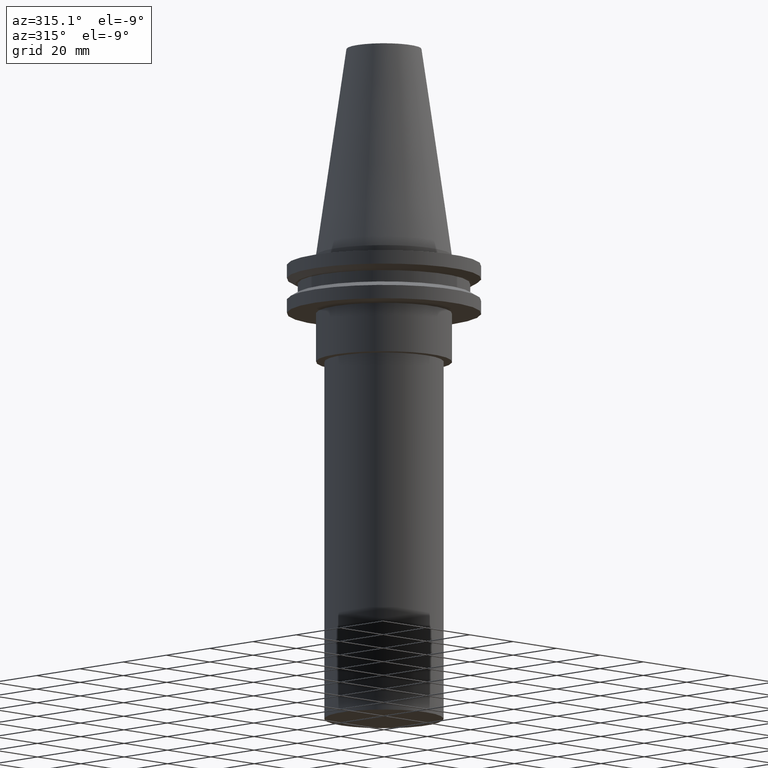
[diagram: clean part render]
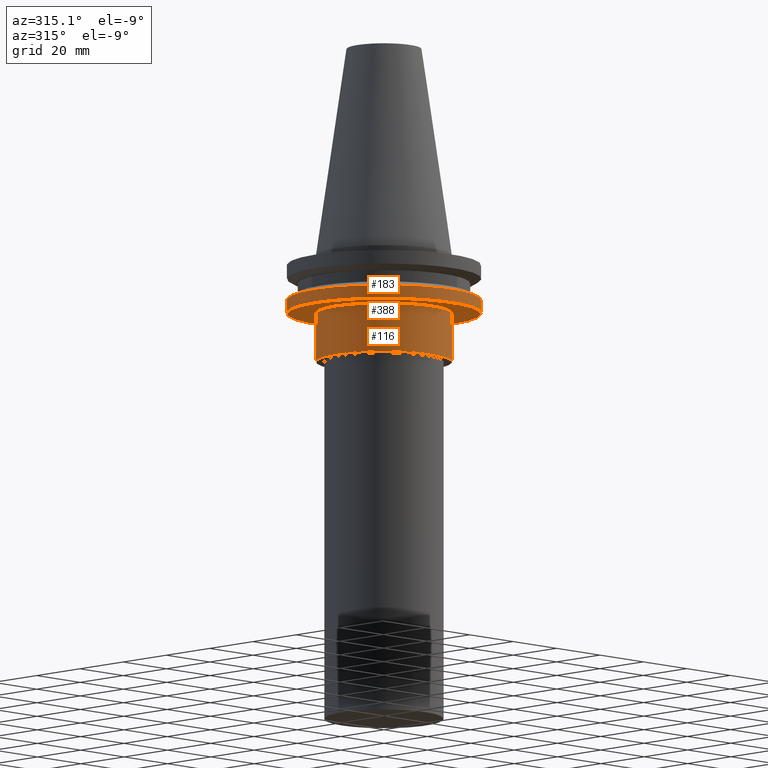
[diagram: same view with one multi-face feature highlighted, each face labeled with its STEP entity id]
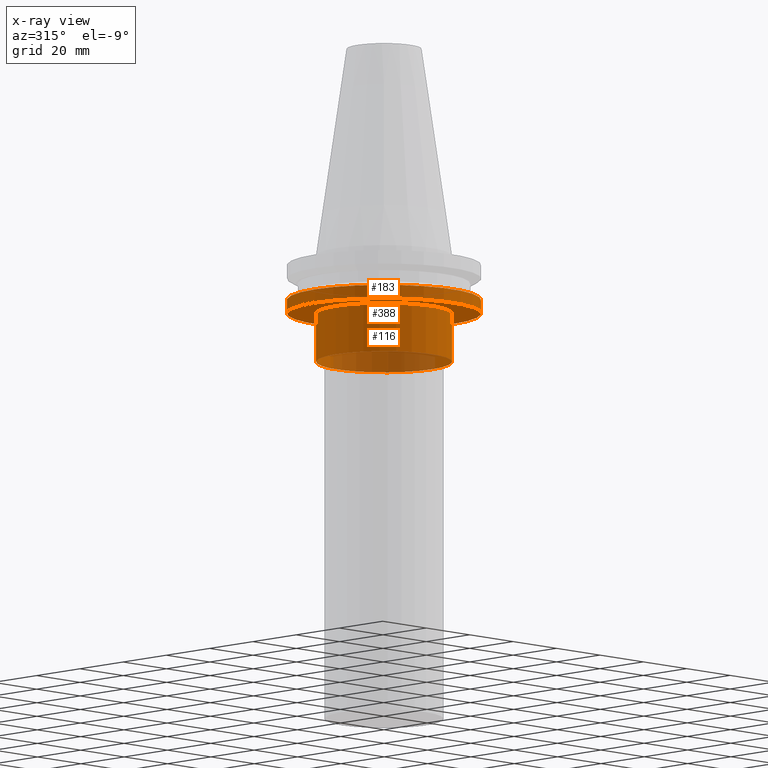
[diagram: x-ray of the same camera — body ghosted, the whole feature saturated]
A machine part, auxiliary view. The highlighted faces form ONE feature: a stepped (counterbored) hole: 2 coaxial cylindrical walls of radii 22.225 -> 31.75 mm joined by 1 annular planar shoulder face(s). The faces share edges in the B-rep.
The next image is the same camera in x-ray: the body ghosted and the whole hole feature saturated, so the bore chain is visible through the body.
Their STEP definitions:
[1] entity #183 (Cylinder):
#48 = EDGE_CURVE ( 'NONE', #255, #255, #92, .T. ) ;
#60 = DIRECTION ( 'NONE',  ( 1.000000000000000000, 0.000000000000000000, 0.000000000000000000 ) ) ;
#80 = DIRECTION ( 'NONE',  ( -0.000000000000000000, -0.000000000000000000, 1.000000000000000000 ) ) ;
#89 = FACE_OUTER_BOUND ( 'NONE', #369, .T. ) ;
#92 = CIRCLE ( 'NONE', #131, 31.74999999999999289 ) ;
#105 = CARTESIAN_POINT ( 'NONE',  ( 31.74999999999999289, 0.000000000000000000, -19.04999999999999716 ) ) ;
#124 = CIRCLE ( 'NONE', #173, 31.75000000000000000 ) ;
#131 = AXIS2_PLACEMENT_3D ( 'NONE', #292, #80, #320 ) ;
#154 = ORIENTED_EDGE ( 'NONE', *, *, #353, .F. ) ;
#156 = DIRECTION ( 'NONE',  ( 1.000000000000000000, 0.000000000000000000, 0.000000000000000000 ) ) ;
#173 = AXIS2_PLACEMENT_3D ( 'NONE', #381, #190, #156 ) ;
#175 = FACE_OUTER_BOUND ( 'NONE', #185, .T. ) ;
#183 = ADVANCED_FACE ( 'NONE', ( #175, #89 ), #210, .T. ) ;
#185 = EDGE_LOOP ( 'NONE', ( #154 ) ) ;
#190 = DIRECTION ( 'NONE',  ( -0.000000000000000000, -0.000000000000000000, 1.000000000000000000 ) ) ;
#210 = CYLINDRICAL_SURFACE ( 'NONE', #356, 31.75000000000000000 ) ;
#254 = ORIENTED_EDGE ( 'NONE', *, *, #48, .T. ) ;
#255 = VERTEX_POINT ( 'NONE', #105 ) ;
#292 = CARTESIAN_POINT ( 'NONE',  ( 0.000000000000000000, 0.000000000000000000, -19.04999999999999716 ) ) ;
#301 = CARTESIAN_POINT ( 'NONE',  ( 0.000000000000000000, 0.000000000000000000, 68.25000000000000000 ) ) ;
#310 = VERTEX_POINT ( 'NONE', #376 ) ;
#320 = DIRECTION ( 'NONE',  ( 1.000000000000000000, 0.000000000000000000, 0.000000000000000000 ) ) ;
#331 = DIRECTION ( 'NONE',  ( -0.000000000000000000, -0.000000000000000000, 1.000000000000000000 ) ) ;
#353 = EDGE_CURVE ( 'NONE', #310, #310, #124, .T. ) ;
#356 = AXIS2_PLACEMENT_3D ( 'NONE', #301, #331, #60 ) ;
#369 = EDGE_LOOP ( 'NONE', ( #254 ) ) ;
#376 = CARTESIAN_POINT ( 'NONE',  ( 31.75000000000000000, 0.000000000000000000, -14.65472339340266572 ) ) ;
#381 = CARTESIAN_POINT ( 'NONE',  ( 0.000000000000000000, 0.000000000000000000, -14.65472339340266572 ) ) ;
[2] entity #116 (Cylinder):
#14 = CARTESIAN_POINT ( 'NONE',  ( 0.000000000000000000, 0.000000000000000000, 68.25000000000000000 ) ) ;
#27 = DIRECTION ( 'NONE',  ( -0.000000000000000000, -0.000000000000000000, 1.000000000000000000 ) ) ;
#62 = DIRECTION ( 'NONE',  ( 1.000000000000000000, 0.000000000000000000, 0.000000000000000000 ) ) ;
#64 = ORIENTED_EDGE ( 'NONE', *, *, #214, .F. ) ;
#91 = DIRECTION ( 'NONE',  ( -0.000000000000000000, -0.000000000000000000, 1.000000000000000000 ) ) ;
#94 = EDGE_LOOP ( 'NONE', ( #64 ) ) ;
#104 = DIRECTION ( 'NONE',  ( 1.000000000000000000, 0.000000000000000000, 0.000000000000000000 ) ) ;
#112 = AXIS2_PLACEMENT_3D ( 'NONE', #14, #27, #104 ) ;
#116 = ADVANCED_FACE ( 'NONE', ( #160, #299 ), #267, .T. ) ;
#129 = EDGE_LOOP ( 'NONE', ( #367 ) ) ;
#139 = CIRCLE ( 'NONE', #384, 22.22499999999999787 ) ;
#160 = FACE_OUTER_BOUND ( 'NONE', #94, .T. ) ;
#176 = CARTESIAN_POINT ( 'NONE',  ( 0.000000000000000000, 0.000000000000000000, -19.04999999999999716 ) ) ;
#178 = AXIS2_PLACEMENT_3D ( 'NONE', #176, #91, #212 ) ;
#186 = CARTESIAN_POINT ( 'NONE',  ( 22.22499999999999787, 0.000000000000000000, -35.04999999999999716 ) ) ;
#195 = VERTEX_POINT ( 'NONE', #186 ) ;
#212 = DIRECTION ( 'NONE',  ( 1.000000000000000000, 0.000000000000000000, 0.000000000000000000 ) ) ;
#214 = EDGE_CURVE ( 'NONE', #287, #287, #302, .T. ) ;
#221 = CARTESIAN_POINT ( 'NONE',  ( 22.22500000000000142, 0.000000000000000000, -19.04999999999999716 ) ) ;
#241 = CARTESIAN_POINT ( 'NONE',  ( 0.000000000000000000, 0.000000000000000000, -35.04999999999999716 ) ) ;
#267 = CYLINDRICAL_SURFACE ( 'NONE', #112, 22.22500000000000142 ) ;
#270 = EDGE_CURVE ( 'NONE', #195, #195, #139, .T. ) ;
#287 = VERTEX_POINT ( 'NONE', #221 ) ;
#299 = FACE_OUTER_BOUND ( 'NONE', #129, .T. ) ;
#302 = CIRCLE ( 'NONE', #178, 22.22500000000000142 ) ;
#367 = ORIENTED_EDGE ( 'NONE', *, *, #270, .T. ) ;
#368 = DIRECTION ( 'NONE',  ( -0.000000000000000000, -0.000000000000000000, 1.000000000000000000 ) ) ;
#384 = AXIS2_PLACEMENT_3D ( 'NONE', #241, #368, #62 ) ;
[3] entity #388 (Plane):
#37 = AXIS2_PLACEMENT_3D ( 'NONE', #288, #340, #225 ) ;
#48 = EDGE_CURVE ( 'NONE', #255, #255, #92, .T. ) ;
#80 = DIRECTION ( 'NONE',  ( -0.000000000000000000, -0.000000000000000000, 1.000000000000000000 ) ) ;
#91 = DIRECTION ( 'NONE',  ( -0.000000000000000000, -0.000000000000000000, 1.000000000000000000 ) ) ;
#92 = CIRCLE ( 'NONE', #131, 31.74999999999999289 ) ;
#96 = FACE_OUTER_BOUND ( 'NONE', #125, .T. ) ;
#105 = CARTESIAN_POINT ( 'NONE',  ( 31.74999999999999289, 0.000000000000000000, -19.04999999999999716 ) ) ;
#125 = EDGE_LOOP ( 'NONE', ( #188 ) ) ;
#131 = AXIS2_PLACEMENT_3D ( 'NONE', #292, #80, #320 ) ;
#176 = CARTESIAN_POINT ( 'NONE',  ( 0.000000000000000000, 0.000000000000000000, -19.04999999999999716 ) ) ;
#178 = AXIS2_PLACEMENT_3D ( 'NONE', #176, #91, #212 ) ;
#188 = ORIENTED_EDGE ( 'NONE', *, *, #48, .F. ) ;
#212 = DIRECTION ( 'NONE',  ( 1.000000000000000000, 0.000000000000000000, 0.000000000000000000 ) ) ;
#214 = EDGE_CURVE ( 'NONE', #287, #287, #302, .T. ) ;
#221 = CARTESIAN_POINT ( 'NONE',  ( 22.22500000000000142, 0.000000000000000000, -19.04999999999999716 ) ) ;
#225 = DIRECTION ( 'NONE',  ( 1.000000000000000000, 0.000000000000000000, 0.000000000000000000 ) ) ;
#246 = ORIENTED_EDGE ( 'NONE', *, *, #214, .T. ) ;
#255 = VERTEX_POINT ( 'NONE', #105 ) ;
#257 = FACE_BOUND ( 'NONE', #281, .T. ) ;
#281 = EDGE_LOOP ( 'NONE', ( #246 ) ) ;
#287 = VERTEX_POINT ( 'NONE', #221 ) ;
#288 = CARTESIAN_POINT ( 'NONE',  ( 0.000000000000000000, 31.74999999999999289, -19.04999999999999716 ) ) ;
#292 = CARTESIAN_POINT ( 'NONE',  ( 0.000000000000000000, 0.000000000000000000, -19.04999999999999716 ) ) ;
#302 = CIRCLE ( 'NONE', #178, 22.22500000000000142 ) ;
#320 = DIRECTION ( 'NONE',  ( 1.000000000000000000, 0.000000000000000000, 0.000000000000000000 ) ) ;
#340 = DIRECTION ( 'NONE',  ( 0.000000000000000000, -0.000000000000000000, 1.000000000000000000 ) ) ;
#348 = PLANE ( 'NONE',  #37 ) ;
#388 = ADVANCED_FACE ( 'NONE', ( #96, #257 ), #348, .F. ) ;